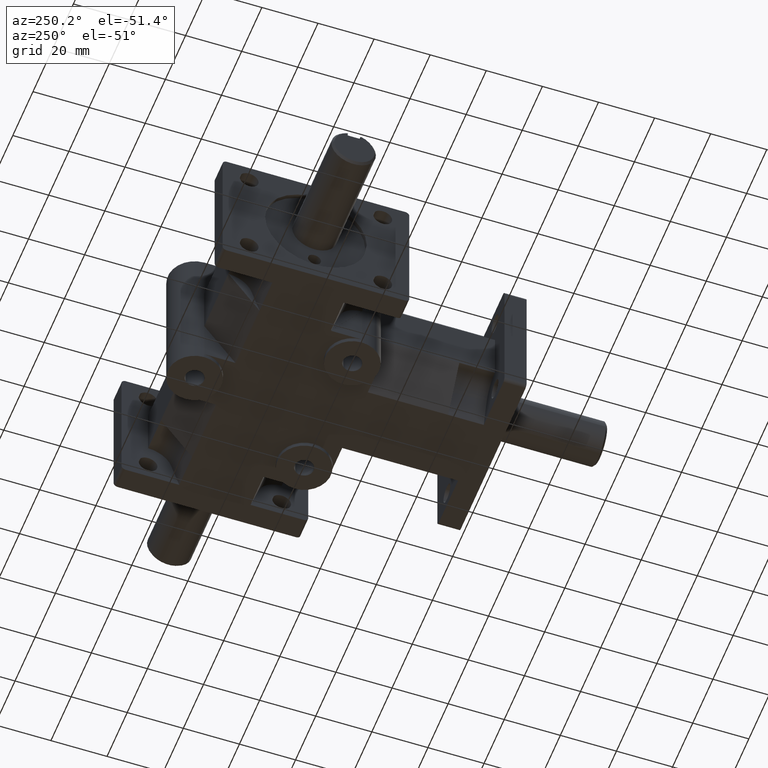
[diagram: clean part render]
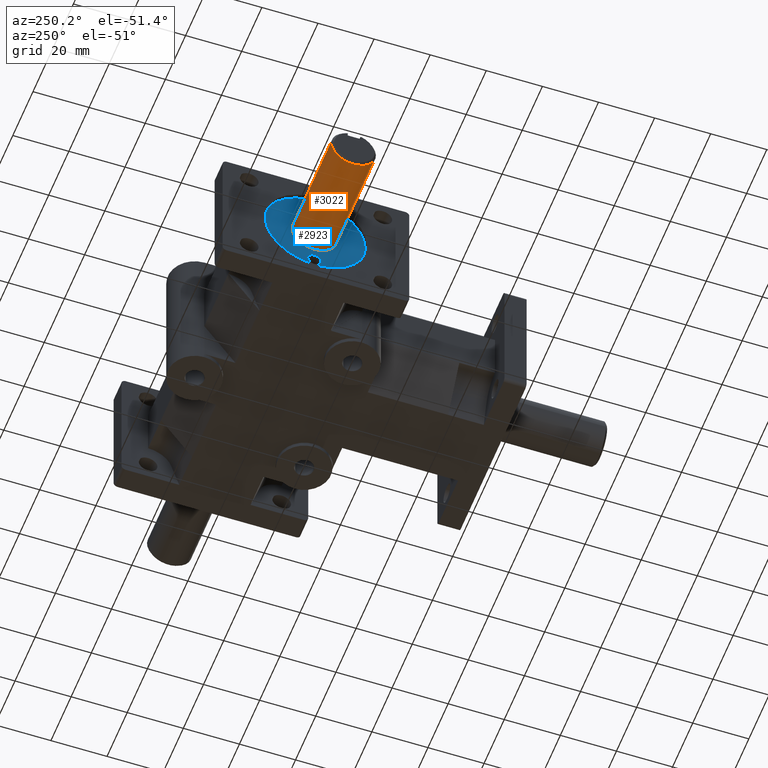
[diagram: same view with the hole feature highlighted: cylindrical wall and planar end face, labeled with their STEP entity ids]
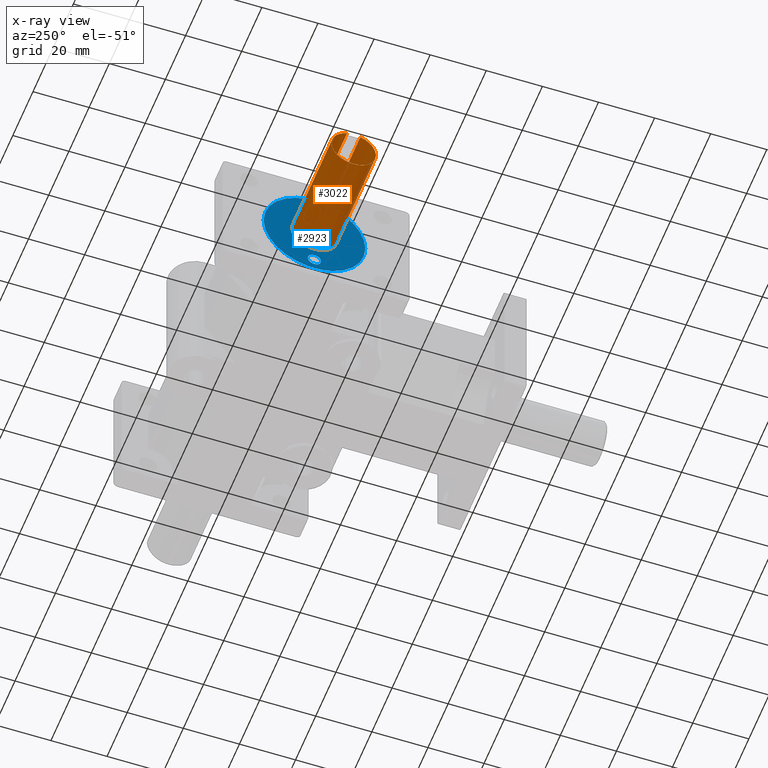
[diagram: x-ray of the same camera — body ghosted, the hole faces saturated]
A machine part, auxiliary view. The highlighted faces form one hole feature of diameter 15.875 mm: the cylindrical wall (entity #3022, orange) and its adjacent planar end face (entity #2923, blue) — they share a circular edge in the B-rep.
The next image is the same camera in x-ray (body ghosted, the hole faces saturated) — the bore reads through the body.
Wall:
#292=FACE_OUTER_BOUND('',#483,.T.);
#483=EDGE_LOOP('',(#2503,#2504,#2505,#2506,#2507,#2508,#2509,#2510));
#766=LINE('',#4939,#1062);
#771=LINE('',#4948,#1067);
#773=LINE('',#4954,#1069);
#1062=VECTOR('',#4025,1.);
#1067=VECTOR('',#4032,1.);
#1069=VECTOR('',#4042,0.3125);
#1170=CIRCLE('',#3125,0.3125);
#1252=CIRCLE('',#3300,0.3125);
#1253=CIRCLE('',#3301,0.3125);
#1255=CIRCLE('',#3307,0.3125);
#1299=VERTEX_POINT('',#4345);
#1497=VERTEX_POINT('',#4918);
#1498=VERTEX_POINT('',#4922);
#1499=VERTEX_POINT('',#4924);
#1503=VERTEX_POINT('',#4938);
#1506=VERTEX_POINT('',#4946);
#1586=EDGE_CURVE('',#1299,#1299,#1170,.T.);
#1865=EDGE_CURVE('',#1497,#1498,#1252,.T.);
#1866=EDGE_CURVE('',#1498,#1499,#1253,.T.);
#1872=EDGE_CURVE('',#1503,#1499,#766,.T.);
#1877=EDGE_CURVE('',#1497,#1506,#771,.T.);
#1878=EDGE_CURVE('',#1506,#1503,#1255,.T.);
#1880=EDGE_CURVE('',#1498,#1299,#773,.T.);
#2503=ORIENTED_EDGE('',*,*,#1865,.F.);
#2504=ORIENTED_EDGE('',*,*,#1877,.T.);
#2505=ORIENTED_EDGE('',*,*,#1878,.T.);
#2506=ORIENTED_EDGE('',*,*,#1872,.T.);
#2507=ORIENTED_EDGE('',*,*,#1866,.F.);
#2508=ORIENTED_EDGE('',*,*,#1880,.T.);
#2509=ORIENTED_EDGE('',*,*,#1586,.F.);
#2510=ORIENTED_EDGE('',*,*,#1880,.F.);
#2899=CYLINDRICAL_SURFACE('',#3309,0.3125);
#3022=ADVANCED_FACE('',(#292),#2899,.T.);
#3125=AXIS2_PLACEMENT_3D('',#4346,#3468,#3469);
#3300=AXIS2_PLACEMENT_3D('',#4923,#4012,#4013);
#3301=AXIS2_PLACEMENT_3D('',#4925,#4014,#4015);
#3307=AXIS2_PLACEMENT_3D('',#4950,#4035,#4036);
#3309=AXIS2_PLACEMENT_3D('',#4953,#4040,#4041);
#3468=DIRECTION('center_axis',(1.,0.,0.));
#3469=DIRECTION('ref_axis',(0.,-1.,0.));
#4012=DIRECTION('center_axis',(-1.,-6.12303176911189E-17,0.));
#4013=DIRECTION('ref_axis',(6.12303176911189E-17,-1.,0.));
#4014=DIRECTION('center_axis',(-1.,-6.12303176911189E-17,0.));
#4015=DIRECTION('ref_axis',(6.12303176911189E-17,-1.,0.));
#4025=DIRECTION('',(-1.,-6.12303176911189E-17,0.));
#4032=DIRECTION('',(1.,6.12303176911189E-17,0.));
#4035=DIRECTION('center_axis',(1.,6.12303176911189E-17,0.));
#4036=DIRECTION('ref_axis',(6.12303176911189E-17,-1.,0.));
#4040=DIRECTION('center_axis',(-1.,-6.12303176911189E-17,0.));
#4041=DIRECTION('ref_axis',(6.12303176911189E-17,-1.,0.));
#4042=DIRECTION('',(1.,6.12303176911189E-17,0.));
#4345=CARTESIAN_POINT('',(-2.065,3.5625,-3.82702124733548E-17));
#4346=CARTESIAN_POINT('Origin',(-2.065,3.25,0.));
#4918=CARTESIAN_POINT('',(-3.595,3.34375,0.298106000442796));
#4922=CARTESIAN_POINT('',(-3.595,3.5625,-3.82702124733548E-17));
#4923=CARTESIAN_POINT('Origin',(-3.595,3.25,0.));
#4924=CARTESIAN_POINT('',(-3.595,3.15625,0.298106000442796));
#4925=CARTESIAN_POINT('Origin',(-3.595,3.25,0.));
#4938=CARTESIAN_POINT('',(-2.625,3.15625,0.298106000442796));
#4939=CARTESIAN_POINT('',(-2.125,3.15625,0.298106000442796));
#4946=CARTESIAN_POINT('',(-2.625,3.34375,0.298106000442796));
#4948=CARTESIAN_POINT('',(-2.125,3.34375,0.298106000442796));
#4950=CARTESIAN_POINT('Origin',(-2.625,3.25,0.));
#4953=CARTESIAN_POINT('Origin',(-2.125,3.25,0.));
#4954=CARTESIAN_POINT('',(-2.125,3.5625,-3.82702124733548E-17));
End face:
#25=FACE_BOUND('',#363,.T.);
#26=FACE_BOUND('',#364,.T.);
#27=FACE_BOUND('',#365,.T.);
#75=PLANE('',#3124);
#193=FACE_OUTER_BOUND('',#362,.T.);
#362=EDGE_LOOP('',(#2032));
#363=EDGE_LOOP('',(#2033));
#364=EDGE_LOOP('',(#2034));
#365=EDGE_LOOP('',(#2035));
#1152=CIRCLE('',#3092,0.0935);
#1154=CIRCLE('',#3096,0.0935);
#1165=CIRCLE('',#3117,0.714);
#1170=CIRCLE('',#3125,0.3125);
#1281=VERTEX_POINT('',#4285);
#1283=VERTEX_POINT('',#4292);
#1294=VERTEX_POINT('',#4329);
#1299=VERTEX_POINT('',#4345);
#1559=EDGE_CURVE('',#1281,#1281,#1152,.T.);
#1562=EDGE_CURVE('',#1283,#1283,#1154,.T.);
#1579=EDGE_CURVE('',#1294,#1294,#1165,.T.);
#1586=EDGE_CURVE('',#1299,#1299,#1170,.T.);
#2032=ORIENTED_EDGE('',*,*,#1579,.T.);
#2033=ORIENTED_EDGE('',*,*,#1586,.T.);
#2034=ORIENTED_EDGE('',*,*,#1559,.T.);
#2035=ORIENTED_EDGE('',*,*,#1562,.T.);
#2923=ADVANCED_FACE('',(#193,#25,#26,#27),#75,.F.);
#3092=AXIS2_PLACEMENT_3D('',#4286,#3393,#3394);
#3096=AXIS2_PLACEMENT_3D('',#4293,#3402,#3403);
#3117=AXIS2_PLACEMENT_3D('',#4331,#3450,#3451);
#3124=AXIS2_PLACEMENT_3D('',#4344,#3466,#3467);
#3125=AXIS2_PLACEMENT_3D('',#4346,#3468,#3469);
#3393=DIRECTION('center_axis',(1.,0.,0.));
#3394=DIRECTION('ref_axis',(0.,1.,0.));
#3402=DIRECTION('center_axis',(1.,0.,0.));
#3403=DIRECTION('ref_axis',(0.,1.,0.));
#3450=DIRECTION('center_axis',(-1.,0.,0.));
#3451=DIRECTION('ref_axis',(0.,1.,0.));
#3466=DIRECTION('center_axis',(1.,0.,0.));
#3467=DIRECTION('ref_axis',(0.,-1.,0.));
#3468=DIRECTION('center_axis',(1.,0.,0.));
#3469=DIRECTION('ref_axis',(0.,-1.,0.));
#4285=CARTESIAN_POINT('',(-2.065,3.1565,-0.53));
#4286=CARTESIAN_POINT('Origin',(-2.065,3.25,-0.53));
#4292=CARTESIAN_POINT('',(-2.065,3.1565,0.53));
#4293=CARTESIAN_POINT('Origin',(-2.065,3.25,0.53));
#4329=CARTESIAN_POINT('',(-2.065,2.536,-8.7439781459121E-17));
#4331=CARTESIAN_POINT('Origin',(-2.065,3.25,0.));
#4344=CARTESIAN_POINT('Origin',(-2.065,3.30409090909091,-8.20154589760046E-18));
#4345=CARTESIAN_POINT('',(-2.065,3.5625,-3.82702124733548E-17));
#4346=CARTESIAN_POINT('Origin',(-2.065,3.25,0.));